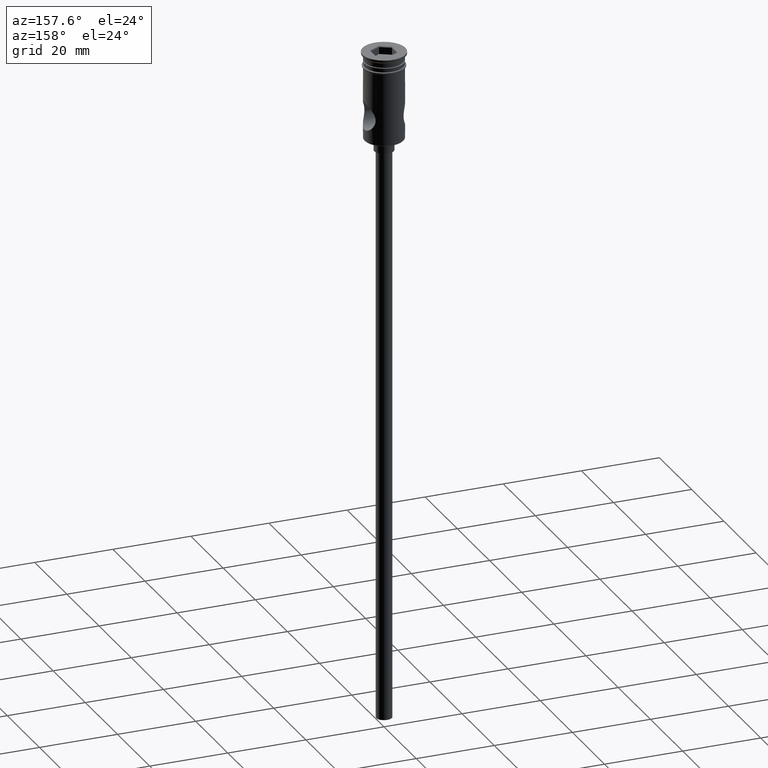
[diagram: clean part render]
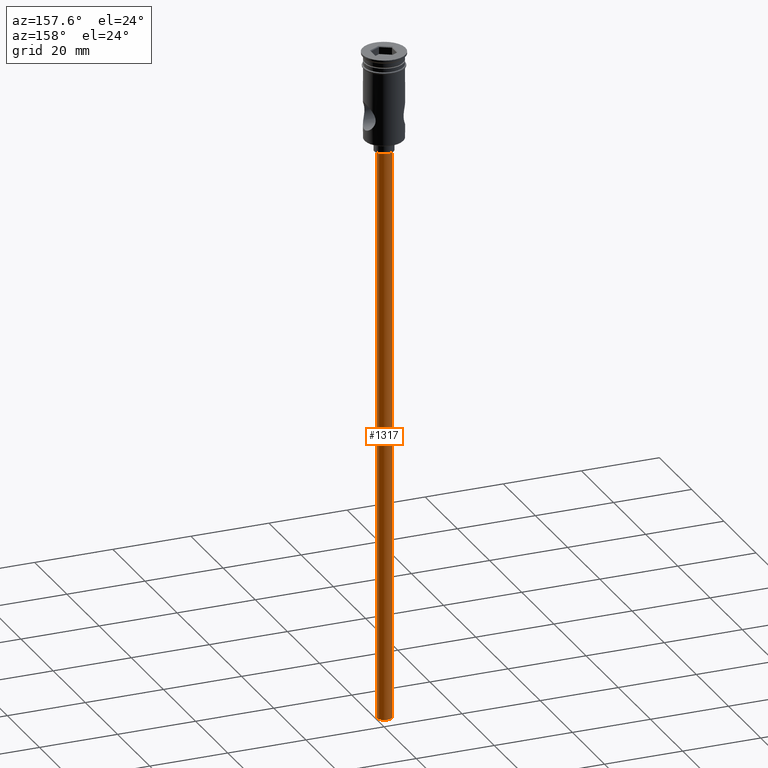
[diagram: same view with one face highlighted and labeled with its STEP entity id]
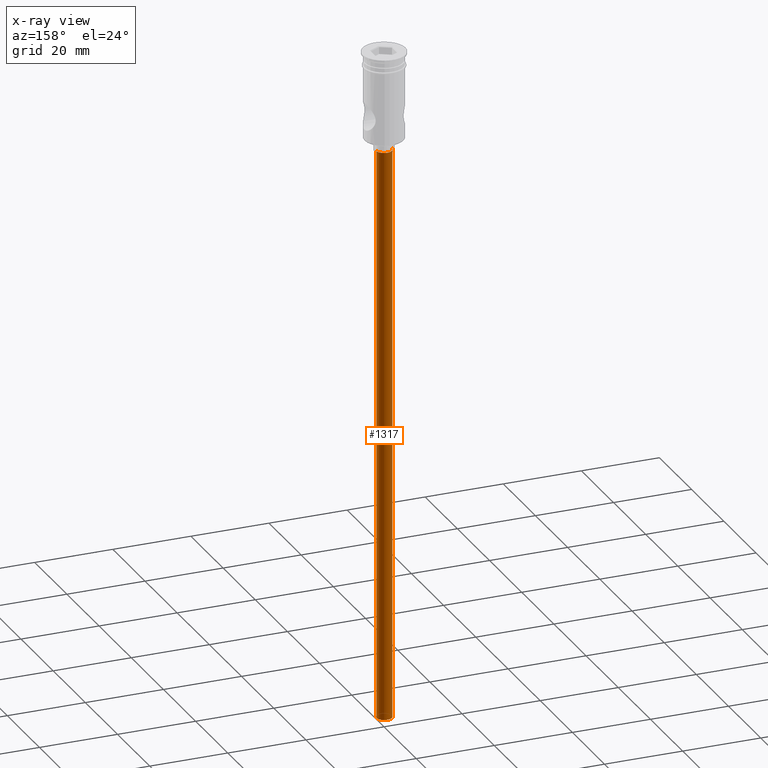
[diagram: x-ray of the same camera — body ghosted, the highlighted face saturated]
A machine part, auxiliary view. The second image highlights one B-rep face of the part: STEP entity #1317.
The next image is the same camera in x-ray: the body ghosted, the highlighted face saturated — about 0% of this face is hidden behind the body in this view.
In plain terms, the highlighted cylindrical surface (edge-blend (fillet) strip) has radius 2 mm, axis along (-0, -0, 1).
Its self-contained STEP definition (entity closure, byte-faithful):
#61 = DIRECTION ( 'NONE',  ( -0.000000000000000000, -0.000000000000000000, 1.000000000000000000 ) ) ;
#131 = AXIS2_PLACEMENT_3D ( 'NONE', #541, #566, #1116 ) ;
#146 = EDGE_LOOP ( 'NONE', ( #969, #1024, #683, #1440 ) ) ;
#245 = LINE ( 'NONE', #405, #457 ) ;
#254 = EDGE_CURVE ( 'NONE', #1124, #1292, #245, .T. ) ;
#265 = VERTEX_POINT ( 'NONE', #831 ) ;
#284 = DIRECTION ( 'NONE',  ( -0.000000000000000000, -0.000000000000000000, 1.000000000000000000 ) ) ;
#318 = DIRECTION ( 'NONE',  ( 1.000000000000000000, 0.000000000000000000, 0.000000000000000000 ) ) ;
#338 = EDGE_CURVE ( 'NONE', #265, #1043, #732, .T. ) ;
#405 = CARTESIAN_POINT ( 'NONE',  ( -2.000000000000000000, 2.449293598294706414E-16, -172.5000000000000000 ) ) ;
#422 = FACE_OUTER_BOUND ( 'NONE', #146, .T. ) ;
#457 = VECTOR ( 'NONE', #284, 1000.000000000000000 ) ;
#540 = CARTESIAN_POINT ( 'NONE',  ( -2.000000000000000000, 2.449293598294706414E-16, -172.5000000000000000 ) ) ;
#541 = CARTESIAN_POINT ( 'NONE',  ( 0.000000000000000000, 0.000000000000000000, -172.5000000000000000 ) ) ;
#566 = DIRECTION ( 'NONE',  ( 0.000000000000000000, 0.000000000000000000, -1.000000000000000000 ) ) ;
#625 = CIRCLE ( 'NONE', #131, 2.000000000000000000 ) ;
#683 = ORIENTED_EDGE ( 'NONE', *, *, #842, .T. ) ;
#732 = LINE ( 'NONE', #1047, #912 ) ;
#785 = EDGE_CURVE ( 'NONE', #1124, #265, #625, .T. ) ;
#822 = CARTESIAN_POINT ( 'NONE',  ( -2.000000000000000000, 2.449293598294706414E-16, -25.50000000000000000 ) ) ;
#831 = CARTESIAN_POINT ( 'NONE',  ( 2.000000000000000000, 0.000000000000000000, -172.5000000000000000 ) ) ;
#835 = CARTESIAN_POINT ( 'NONE',  ( 0.000000000000000000, 0.000000000000000000, -25.50000000000000000 ) ) ;
#842 = EDGE_CURVE ( 'NONE', #1292, #1043, #866, .T. ) ;
#866 = CIRCLE ( 'NONE', #1296, 2.000000000000000000 ) ;
#868 = AXIS2_PLACEMENT_3D ( 'NONE', #1429, #957, #318 ) ;
#912 = VECTOR ( 'NONE', #61, 1000.000000000000000 ) ;
#957 = DIRECTION ( 'NONE',  ( -0.000000000000000000, -0.000000000000000000, 1.000000000000000000 ) ) ;
#958 = DIRECTION ( 'NONE',  ( 0.000000000000000000, 0.000000000000000000, -1.000000000000000000 ) ) ;
#969 = ORIENTED_EDGE ( 'NONE', *, *, #785, .F. ) ;
#1024 = ORIENTED_EDGE ( 'NONE', *, *, #254, .T. ) ;
#1043 = VERTEX_POINT ( 'NONE', #1255 ) ;
#1047 = CARTESIAN_POINT ( 'NONE',  ( 2.000000000000000000, 0.000000000000000000, -172.5000000000000000 ) ) ;
#1116 = DIRECTION ( 'NONE',  ( -1.000000000000000000, 0.000000000000000000, 0.000000000000000000 ) ) ;
#1124 = VERTEX_POINT ( 'NONE', #540 ) ;
#1255 = CARTESIAN_POINT ( 'NONE',  ( 2.000000000000000000, 0.000000000000000000, -25.50000000000000000 ) ) ;
#1292 = VERTEX_POINT ( 'NONE', #822 ) ;
#1296 = AXIS2_PLACEMENT_3D ( 'NONE', #835, #958, #1298 ) ;
#1298 = DIRECTION ( 'NONE',  ( -1.000000000000000000, 0.000000000000000000, 0.000000000000000000 ) ) ;
#1317 = ADVANCED_FACE ( 'NONE', ( #422 ), #1437, .T. ) ;
#1429 = CARTESIAN_POINT ( 'NONE',  ( 0.000000000000000000, 0.000000000000000000, -172.5000000000000000 ) ) ;
#1437 = CYLINDRICAL_SURFACE ( 'NONE', #868, 2.000000000000000000 ) ;
#1440 = ORIENTED_EDGE ( 'NONE', *, *, #338, .F. ) ;